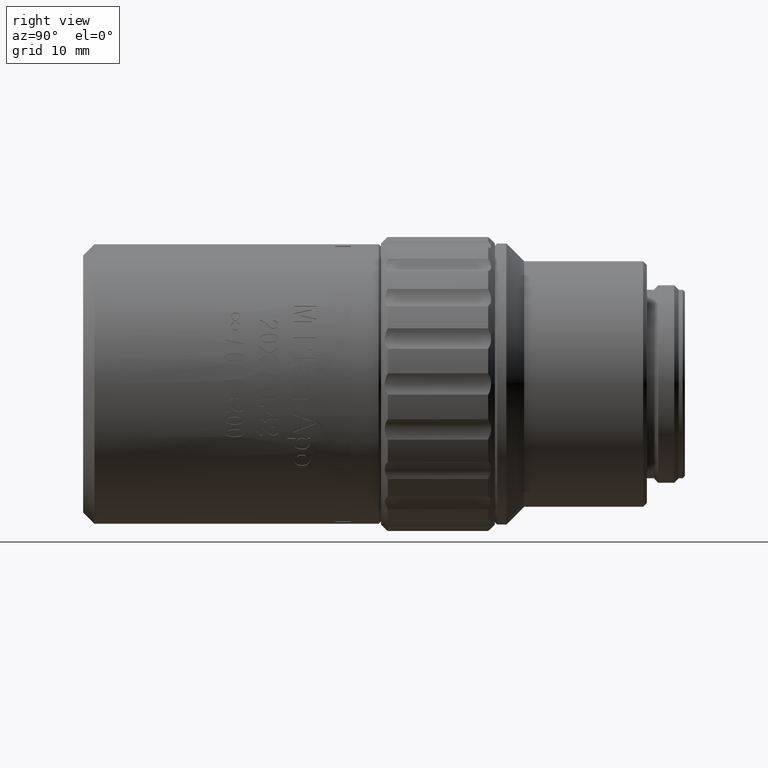
[diagram: clean part render]
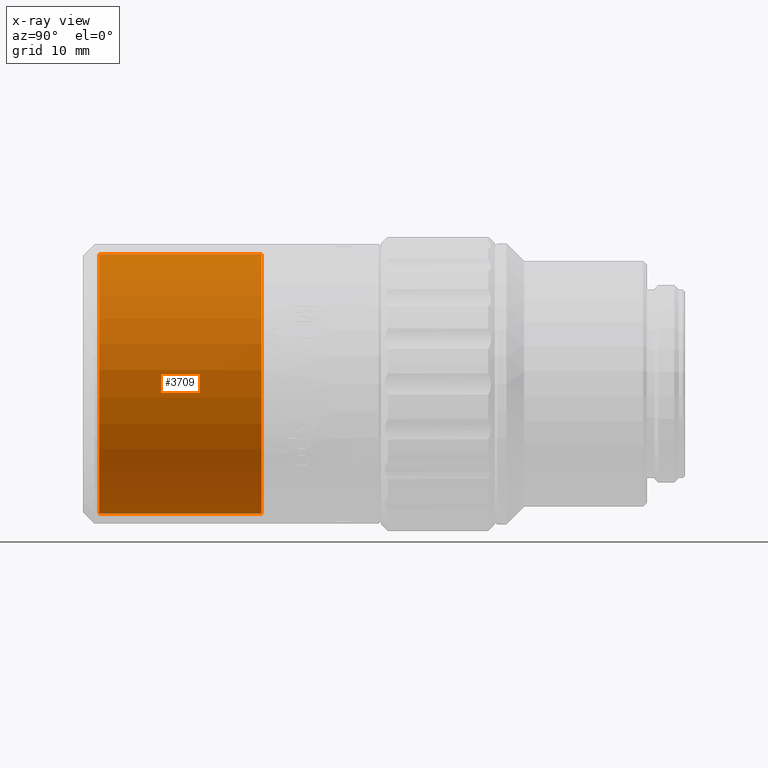
[diagram: x-ray — body ghosted, one internal face saturated and labeled with its STEP entity id]
A machine part, right view, then the same camera in x-ray: the body is ghosted and one INTERNAL B-rep face — a face not visible from any outside direction — is saturated and labeled: STEP entity #3709.
In plain terms, the highlighted cylindrical surface (partial cylindrical patch) has radius 17.1 mm, axis along (0, 1, 0).
Its self-contained STEP definition (entity closure, byte-faithful):
#1887 = EDGE_LOOP ( 'NONE', ( #7915, #7013, #19554, #14647 ) ) ;
#2040 = DIRECTION ( 'NONE',  ( 0.000000000000000000, 1.000000000000000000, 0.000000000000000000 ) ) ;
#2103 = CIRCLE ( 'NONE', #6922, 17.10000000000099973 ) ;
#2493 = VERTEX_POINT ( 'NONE', #14836 ) ;
#2547 = CIRCLE ( 'NONE', #19517, 17.10000000000099973 ) ;
#3249 = CARTESIAN_POINT ( 'NONE',  ( 0.000000000000000000, 22.40401716502969975, 17.10000000000099973 ) ) ;
#3420 = EDGE_CURVE ( 'NONE', #2493, #18688, #2547, .T. ) ;
#3486 = VERTEX_POINT ( 'NONE', #3249 ) ;
#3588 = CARTESIAN_POINT ( 'NONE',  ( 0.000000000000000000, 1.004017165010510082, 0.000000000000000000 ) ) ;
#3709 = ADVANCED_FACE ( 'NONE', ( #5604 ), #19441, .T. ) ;
#3873 = EDGE_CURVE ( 'NONE', #2493, #3486, #8679, .T. ) ;
#4307 = DIRECTION ( 'NONE',  ( 0.000000000000000000, 0.000000000000000000, 1.000000000000000000 ) ) ;
#5245 = CARTESIAN_POINT ( 'NONE',  ( 2.094146026542096699E-15, 11.70401716502010103, -17.10000000000099973 ) ) ;
#5604 = FACE_OUTER_BOUND ( 'NONE', #1887, .T. ) ;
#6280 = CARTESIAN_POINT ( 'NONE',  ( 2.127823813518587886E-15, 22.40401716502969975, -17.10000000000099973 ) ) ;
#6742 = VECTOR ( 'NONE', #19304, 1000.000000000000000 ) ;
#6922 = AXIS2_PLACEMENT_3D ( 'NONE', #13035, #15752, #8445 ) ;
#7013 = ORIENTED_EDGE ( 'NONE', *, *, #15810, .T. ) ;
#7915 = ORIENTED_EDGE ( 'NONE', *, *, #3420, .T. ) ;
#8445 = DIRECTION ( 'NONE',  ( 1.000000000000000000, 0.000000000000000000, 0.000000000000000000 ) ) ;
#8679 = LINE ( 'NONE', #13168, #6742 ) ;
#11536 = AXIS2_PLACEMENT_3D ( 'NONE', #17831, #13308, #4307 ) ;
#12192 = VERTEX_POINT ( 'NONE', #6280 ) ;
#12244 = CARTESIAN_POINT ( 'NONE',  ( 2.094146026542096699E-15, 1.004017165010510082, -17.10000000000099973 ) ) ;
#12488 = DIRECTION ( 'NONE',  ( 0.000000000000000000, 1.000000000000000000, 0.000000000000000000 ) ) ;
#13035 = CARTESIAN_POINT ( 'NONE',  ( 0.000000000000000000, 22.40401716502969975, 0.000000000000000000 ) ) ;
#13168 = CARTESIAN_POINT ( 'NONE',  ( 0.000000000000000000, 11.70401716502010103, 17.10000000000099973 ) ) ;
#13308 = DIRECTION ( 'NONE',  ( 0.000000000000000000, 1.000000000000000000, 0.000000000000000000 ) ) ;
#14154 = LINE ( 'NONE', #5245, #16472 ) ;
#14647 = ORIENTED_EDGE ( 'NONE', *, *, #3873, .F. ) ;
#14836 = CARTESIAN_POINT ( 'NONE',  ( 0.000000000000000000, 1.004017165010510082, 17.10000000000099973 ) ) ;
#15752 = DIRECTION ( 'NONE',  ( 0.000000000000000000, 1.000000000000000000, 0.000000000000000000 ) ) ;
#15787 = DIRECTION ( 'NONE',  ( 1.000000000000000000, 0.000000000000000000, 0.000000000000000000 ) ) ;
#15810 = EDGE_CURVE ( 'NONE', #18688, #12192, #14154, .T. ) ;
#16472 = VECTOR ( 'NONE', #2040, 1000.000000000000000 ) ;
#17524 = EDGE_CURVE ( 'NONE', #3486, #12192, #2103, .T. ) ;
#17831 = CARTESIAN_POINT ( 'NONE',  ( 0.000000000000000000, 11.70401716502010103, 0.000000000000000000 ) ) ;
#18688 = VERTEX_POINT ( 'NONE', #12244 ) ;
#19304 = DIRECTION ( 'NONE',  ( 0.000000000000000000, 1.000000000000000000, 0.000000000000000000 ) ) ;
#19441 = CYLINDRICAL_SURFACE ( 'NONE', #11536, 17.10000000000099973 ) ;
#19517 = AXIS2_PLACEMENT_3D ( 'NONE', #3588, #12488, #15787 ) ;
#19554 = ORIENTED_EDGE ( 'NONE', *, *, #17524, .F. ) ;